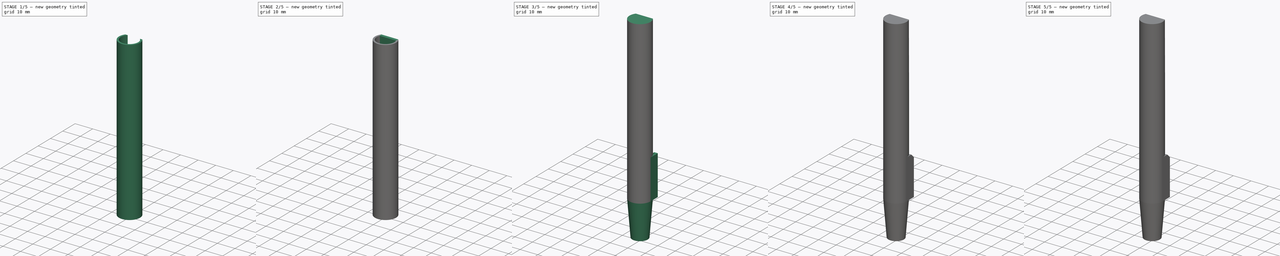
[diagram: build sequence overview — one tinted view per stage of 5, left to right]
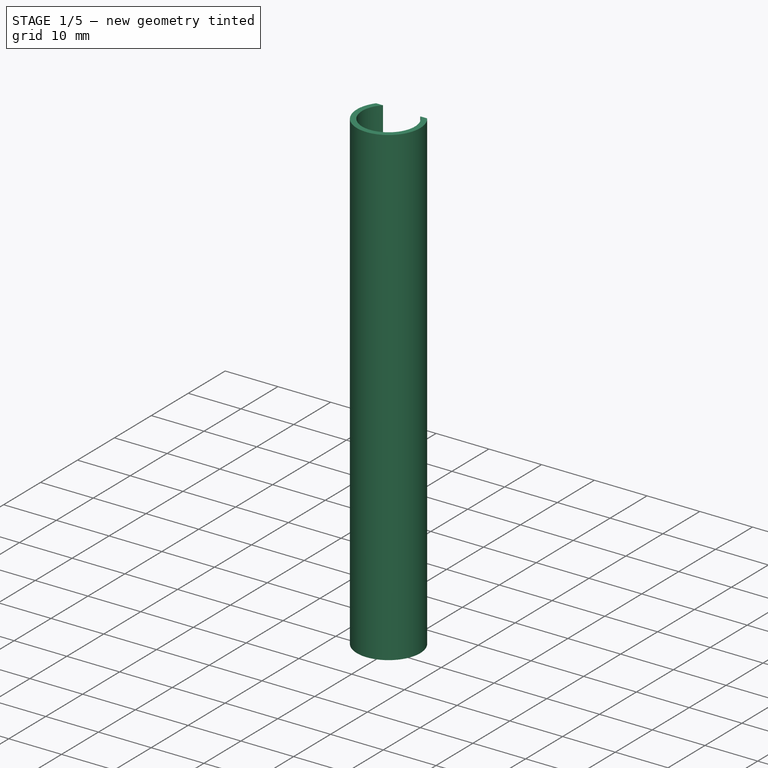
[diagram: stage 1 of 5 — iso view after this stage's code; geometry added in this stage tinted green]
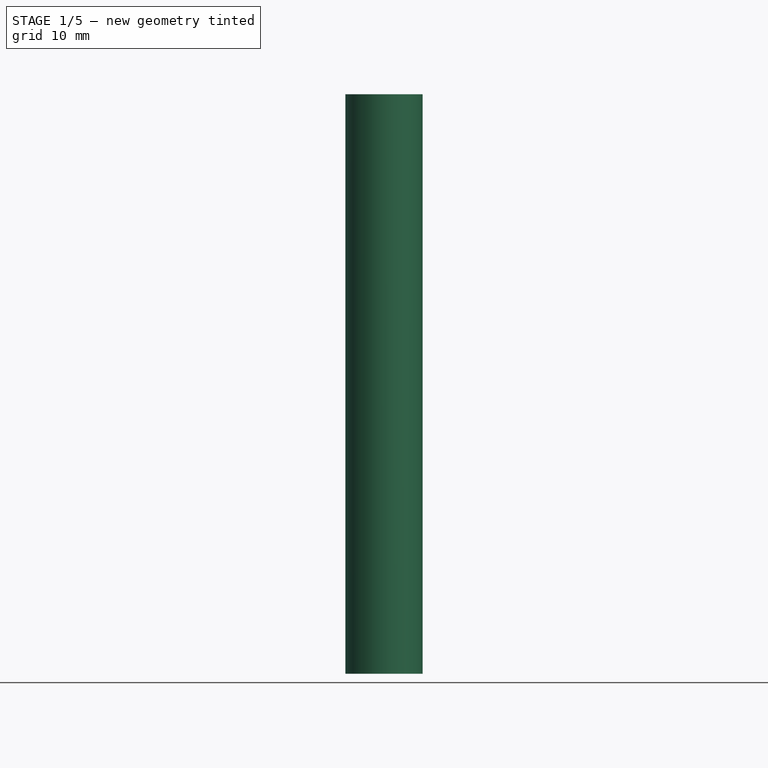
[diagram: stage 1 of 5 — front view after this stage's code; geometry added in this stage tinted green]
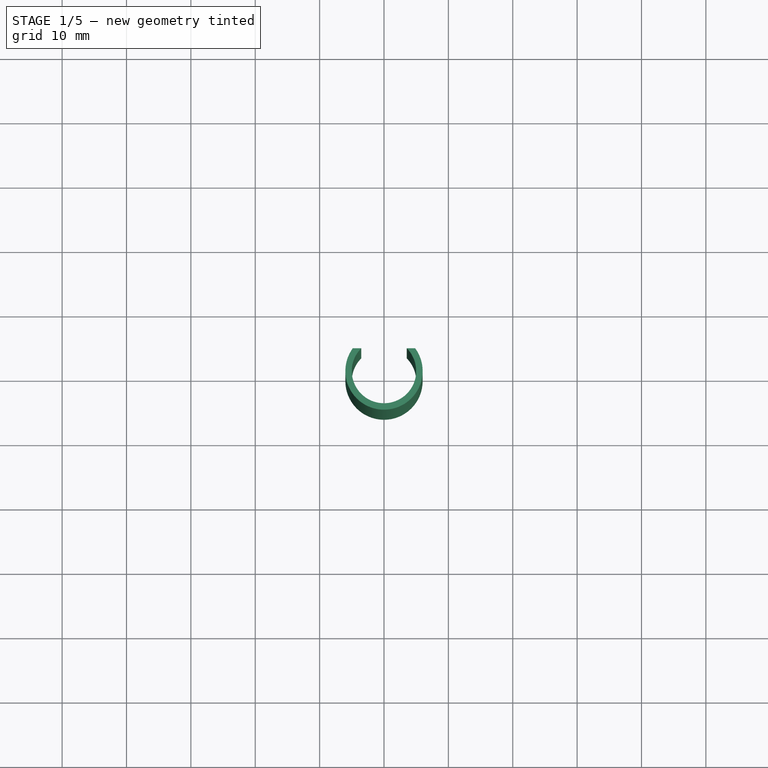
[diagram: stage 1 of 5 — top view after this stage's code; geometry added in this stage tinted green]
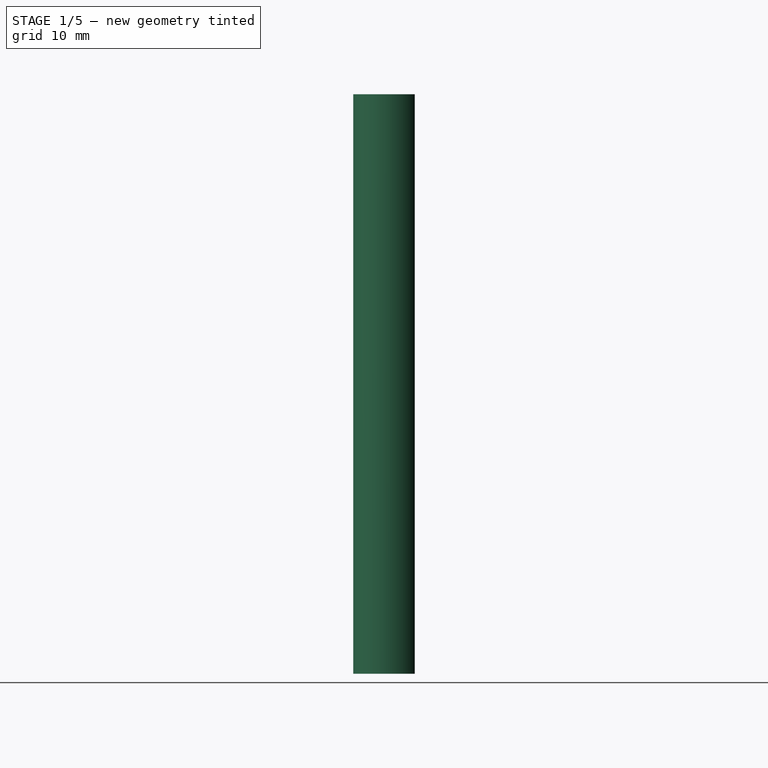
[diagram: stage 1 of 5 — right view after this stage's code; geometry added in this stage tinted green]
FCSTD DOCUMENT  (FreeCAD 1.0R39319 (Git))
Label: stroik_burd
License: All rights reserved
LicenseURL: https://en.wikipedia.org/wiki/All_rights_reserved
objects: Sketcher::SketchObject×12, PartDesign::Pocket×6, PartDesign::Pad×4, PartDesign::Body×2, Part::FeaturePython×1, PartDesign::FeatureBase×1, App::VarSet×1, PartDesign::Mirrored×1, PartDesign::Plane×1, PartDesign::AdditiveLoft×1, PartDesign::ShapeBinder×1, PartDesign::Chamfer×1
note: 69 computed .brp shape members not serialized (recipe doc carries the construction recipe); baked Part::Feature solids carry a one-line shape summary decoded from their .brp

FEATURE [Part::FeaturePython] Tube  # WARN: FeaturePython — macro-defined, semantics opaque (R4)
  AttacherType = Attacher::AttachEngine3D
  Height = 90
  InnerRadius = 5
  OuterRadius = 6
  Placement = pos=(0,0,0) rot=(0,1,0;1.5708rad)
  expr: Height = VarSet.leaf_len
  expr: InnerRadius = VarSet.d_inner
  expr: OuterRadius = VarSet.d_outer
FEATURE [PartDesign::FeatureBase] BaseFeature
  BaseFeature = -> Tube
  Suppressed = false
FEATURE [App::VarSet] VarSet
  d_inner = 5
  d_outer = 6
  d_outer_plug = 6
  leaf_angle = 0
  leaf_angle2 = 1.565
  leaf_end_thickness = 0.4
  leaf_len = 90
  leaf_start_thickness = 2.5
  plug_inner_start = 4
  plug_len = 20
  plug_outer_start = 4.4
FEATURE [Sketcher::SketchObject] Sketch
  ArcFitTolerance = 1e-06
  AttachmentSupport = -> [YZ_Plane]
  ExternalGeometry = -> [BaseFeature]
  FullyConstrained = true
  MakeInternals = false
  MapMode = 5
  Placement = pos=(0,0,0) rot=(0.57735,0.57735,0.57735;2.0944rad)
  expr: Constraints[14] = VarSet.leaf_len / 4
  expr: Constraints[8] = VarSet.leaf_len * sin(VarSet.leaf_angle2)
  sketch-geometry (6):
    g0: LineSegment StartX=6 StartY=90 StartZ=0 EndX=3.54201 EndY=90 EndZ=0
    g1: LineSegment StartX=3.54201 StartY=0 StartZ=0 EndX=6 EndY=0 EndZ=0
    g2: LineSegment StartX=6 StartY=0 StartZ=0 EndX=6 EndY=22.5 EndZ=0
    g3: LineSegment StartX=6 StartY=22.5 StartZ=0 EndX=6 EndY=90 EndZ=0
    g4: LineSegment StartX=3.54201 StartY=90 StartZ=0 EndX=3.54201 EndY=22.5 EndZ=0
    g5: LineSegment StartX=3.54201 StartY=22.5 StartZ=0 EndX=3.54201 EndY=0 EndZ=0
  constraints (17):
    c: Coincident(g0,g4)
    c: Coincident(g5,g1)
    c: Coincident(g1,g2)
    c: Coincident(g3,g0)
    c: Horizontal(g0)
    c: Horizontal(g1)
    c: Coincident(g0,g-3)
    c: PointOnObject(g5,g-4)
    c: DistanceX(g5,g1) = 2.45799
    c: Coincident(g2,g3)
    c: Vertical(g2)
    c: Vertical(g3)
    c: Coincident(g4,g5)
    c: Vertical(g5)
    c: DistanceY(g2,g2) = 22.5
    c: Horizontal(g2,g4)
    c: Vertical(g4)
FEATURE [Sketcher::SketchObject] Sketch001
  ArcFitTolerance = 1e-06
  AttachmentSupport = -> [YZ_Plane]
  ExternalGeometry = -> [Sketch]
  FullyConstrained = true
  MakeInternals = false
  MapMode = 5
  Placement = pos=(0,0,0) rot=(0.57735,0.57735,0.57735;2.0944rad)
  expr: Constraints[12] = 0.8
  expr: Constraints[13] = VarSet.leaf_len * sin(VarSet.leaf_angle2) / 2 + 0.4 mm
  sketch-geometry (6):
    g0: LineSegment StartX=3.54201 StartY=0 StartZ=0 EndX=2.74201 EndY=0 EndZ=0
    g1: LineSegment StartX=2.74201 StartY=0 StartZ=0 EndX=2.74201 EndY=22.5 EndZ=0
    g2: LineSegment StartX=2.74201 StartY=22.5 StartZ=0 EndX=1.91301 EndY=90 EndZ=0
    g3: LineSegment StartX=1.91301 StartY=90 StartZ=0 EndX=3.54201 EndY=90 EndZ=0
    g4: LineSegment StartX=3.54201 StartY=90 StartZ=0 EndX=3.54201 EndY=22.5 EndZ=0
    g5: LineSegment StartX=3.54201 StartY=22.5 StartZ=0 EndX=3.54201 EndY=0 EndZ=0
  constraints (15):
    c: Coincident(g-4,g0)
    c: PointOnObject(g0,g-1)
    c: Coincident(g0,g1)
    c: Vertical(g1)
    c: Coincident(g1,g2)
    c: Coincident(g2,g3)
    c: Coincident(g3,g-3)
    c: Horizontal(g3)
    c: Coincident(g3,g4)
    c: Coincident(g4,g-4)
    c: Coincident(g4,g5)
    c: Coincident(g5,g0)
    c: DistanceX(g1,g4) = 0.8
    c: DistanceX(g2,g3) = 1.629
    c: Horizontal(g1,g4)
FEATURE [PartDesign::Pocket] Pocket
  BaseFeature = -> BaseFeature
  Direction = (-1,0,0)
  Length = 5
  Length2 = 5
  Midplane = true
  Profile = -> Sketch
  ReferenceAxis = -> Sketch [N_Axis]
  Refine = true
  Suppressed = false
  Type = 1
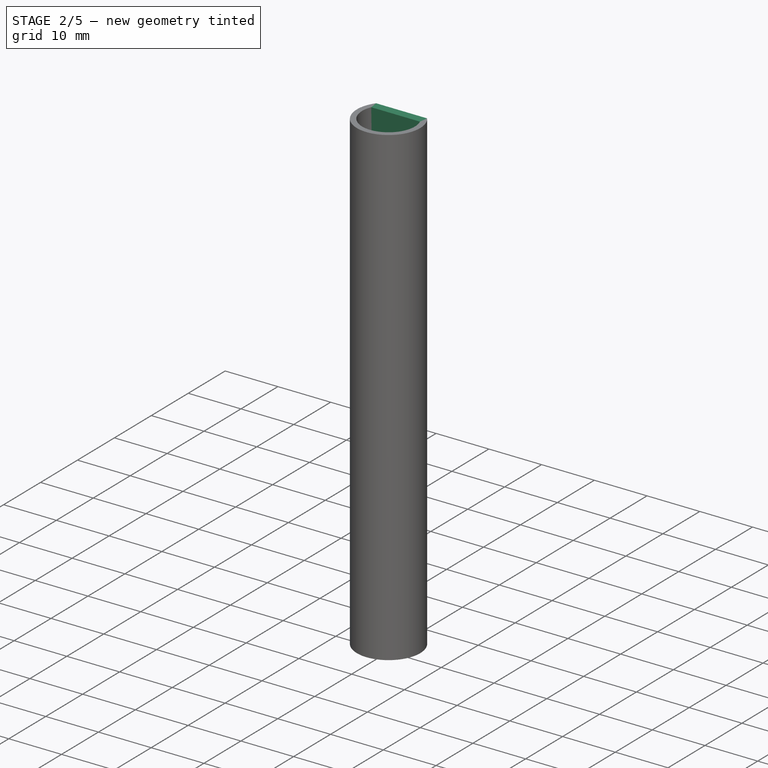
[diagram: stage 2 of 5 — iso view after this stage's code; geometry added in this stage tinted green]
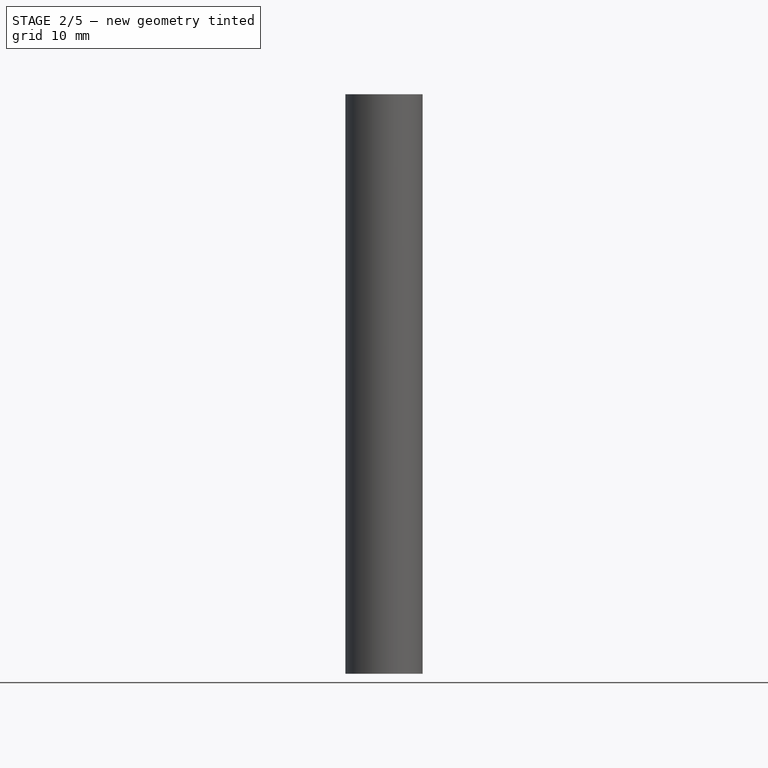
[diagram: stage 2 of 5 — front view after this stage's code; geometry added in this stage tinted green]
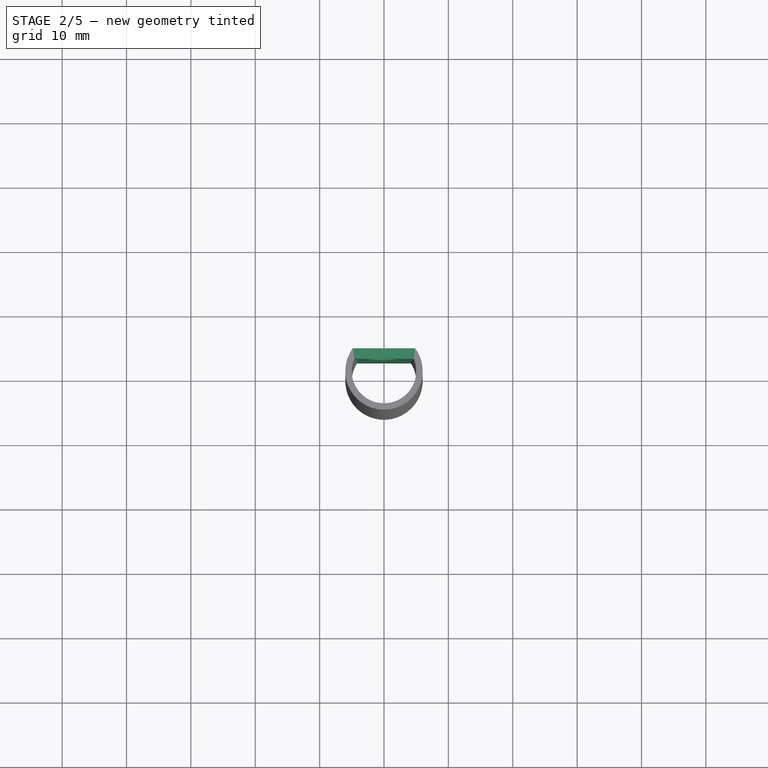
[diagram: stage 2 of 5 — top view after this stage's code; geometry added in this stage tinted green]
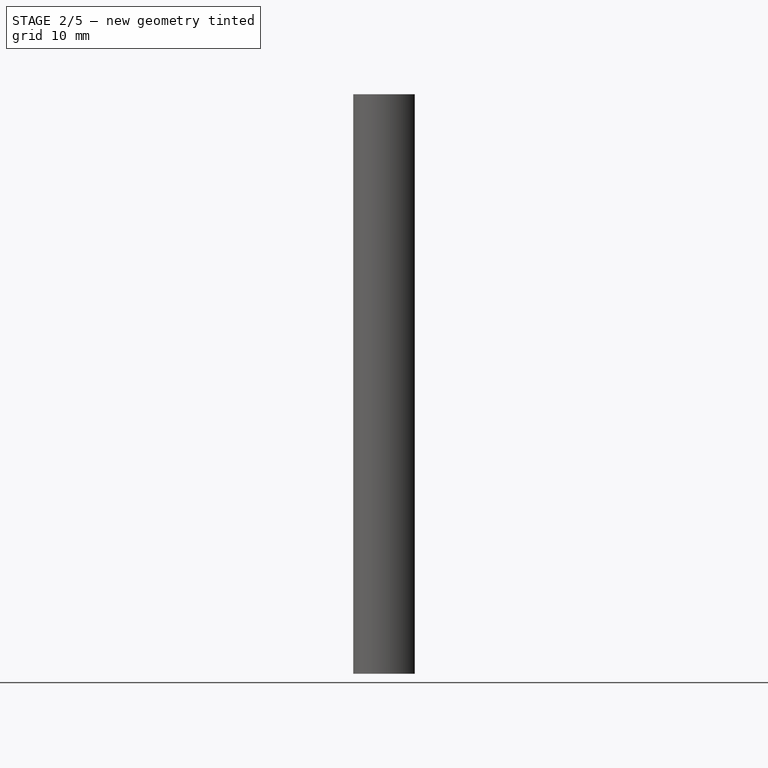
[diagram: stage 2 of 5 — right view after this stage's code; geometry added in this stage tinted green]
FEATURE [PartDesign::Pad] Pad
  AlongSketchNormal = false
  BaseFeature = -> Pocket
  Direction = (1,0,0)
  Length = 13
  Length2 = 10
  Midplane = true
  Profile = -> Sketch001
  ReferenceAxis = -> Sketch001 [N_Axis]
  Refine = true
  Suppressed = false
  Type = 1
  UpToShape = -> [Pocket]
FEATURE [PartDesign::Mirrored] Mirrored
  BaseFeature = -> Pad
  MirrorPlane = -> YZ_Plane
  Originals = -> [Pad]
  Refine = true
  Suppressed = false
  TransformMode = 0
FEATURE [Sketcher::SketchObject] Sketch002
  ArcFitTolerance = 1e-06
  AttachmentSupport = -> [Mirrored]
  ExternalGeometry = -> [Mirrored]
  FullyConstrained = true
  MakeInternals = false
  MapMode = 5
  Placement = pos=(0,3.54201,0) rot=(0,0.707107,0.707107;3.14159rad)
  expr: Constraints[10] = VarSet.leaf_len / 3
  expr: Constraints[6] = VarSet.d_inner / 3
  expr: Constraints[9] = VarSet.leaf_len / 10
  sketch-geometry (4):
    g0: LineSegment StartX=2.34433 StartY=51 StartZ=0 EndX=2.34433 EndY=81 EndZ=0
    g1: LineSegment StartX=2.34433 StartY=81 StartZ=0 EndX=-2.34433 EndY=81 EndZ=0
    g2: LineSegment StartX=-2.34433 StartY=81 StartZ=0 EndX=-2.34433 EndY=51 EndZ=0
    g3: ArcOfCircle CenterX=0 CenterY=51 CenterZ=0 NormalX=0 NormalY=0 NormalZ=1 AngleXU=0 Radius=2.34433 StartAngle=3.14159 EndAngle=6.28319
  constraints (12):
    c: Coincident(g0,g1)
    c: Coincident(g1,g2)
    c: Coincident(g3,g2)
    c: Coincident(g3,g0)
    c: PointOnObject(g3,g-2)
    c: Horizontal(g0,g2)
    c: DistanceX(g0,g-4) = 1.66667
    c: Horizontal(g2,g3)
    c: Symmetric(g0,g1,g-2)
    c: DistanceY(g1,g-7) = 9
    c: DistanceY(g3,g1) = 30
    c: Vertical(g1,g2)
FEATURE [PartDesign::Pocket] Pocket001  label="dziurka"
  BaseFeature = -> Mirrored
  Direction = (0,-1,2e-16)
  Length = 2.5
  Length2 = 5
  Profile = -> Sketch002
  ReferenceAxis = -> Sketch002 [N_Axis]
  Refine = true
  Suppressed = false
  Type = 0
  expr: Length = VarSet.d_inner / 2
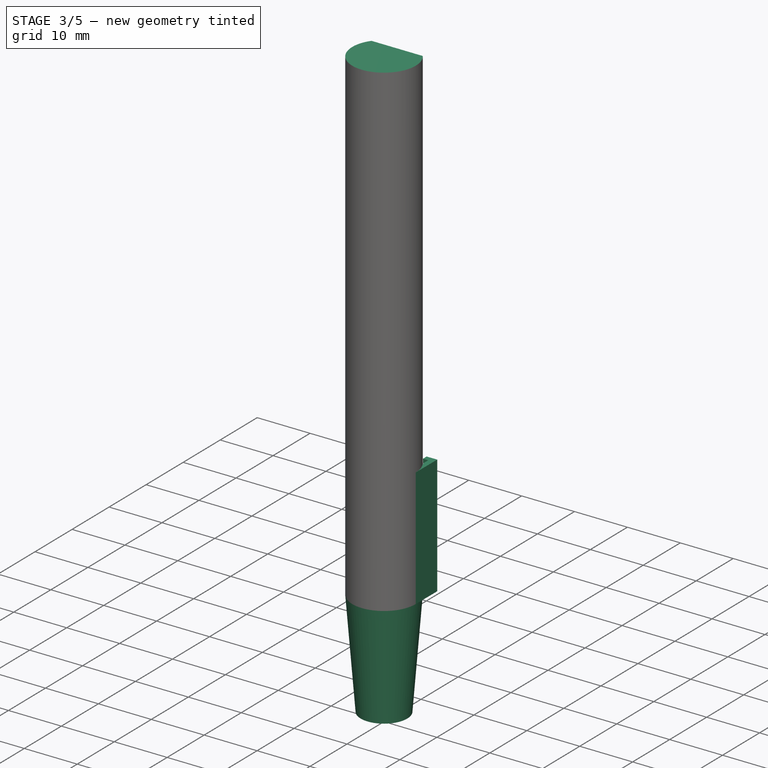
[diagram: stage 3 of 5 — iso view after this stage's code; geometry added in this stage tinted green]
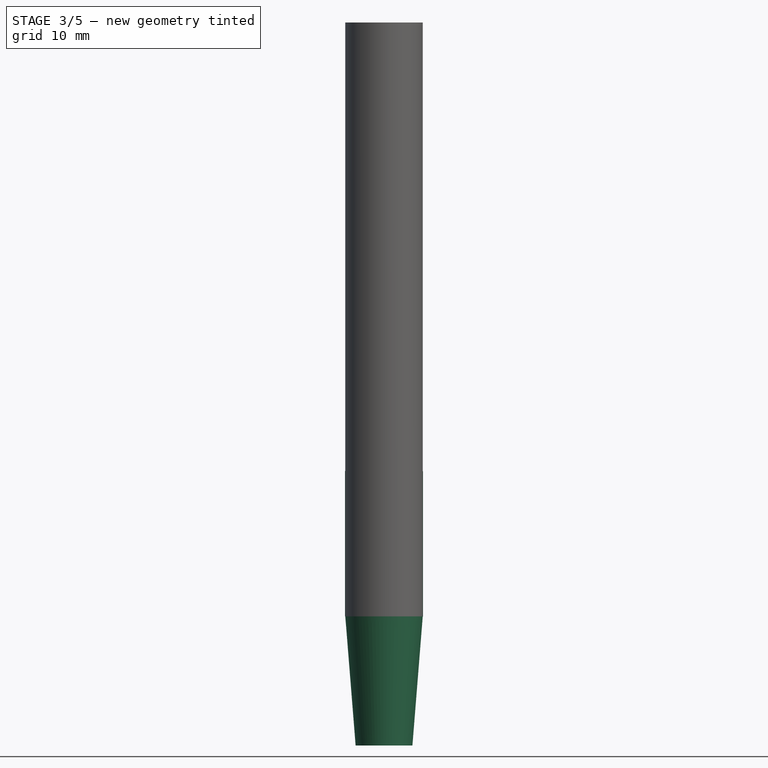
[diagram: stage 3 of 5 — front view after this stage's code; geometry added in this stage tinted green]
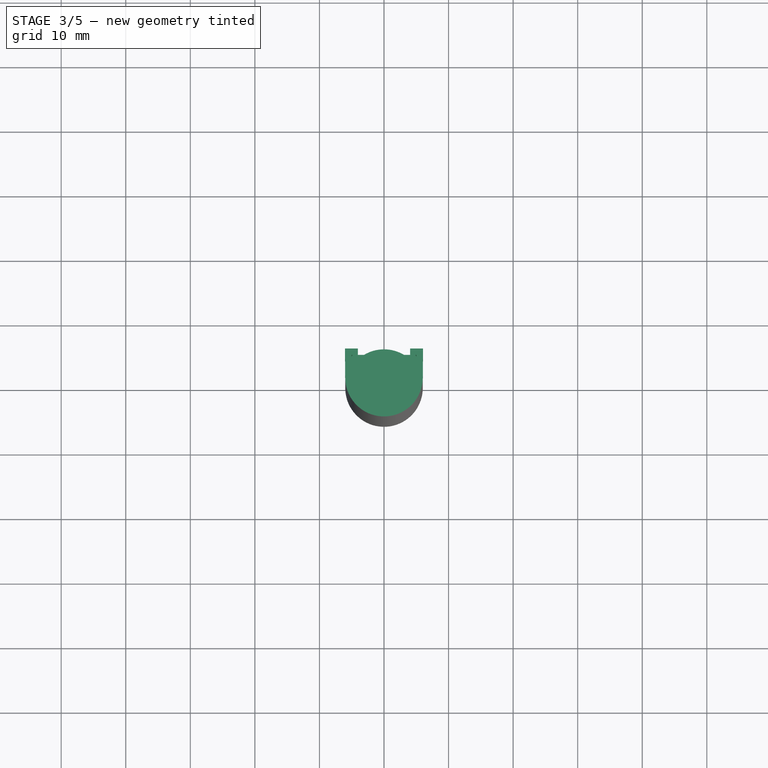
[diagram: stage 3 of 5 — top view after this stage's code; geometry added in this stage tinted green]
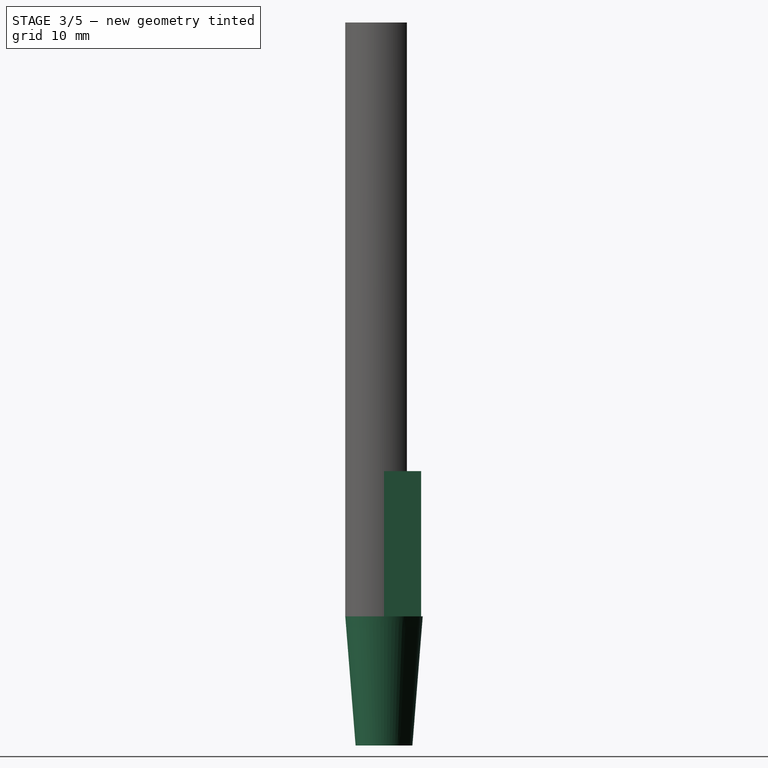
[diagram: stage 3 of 5 — right view after this stage's code; geometry added in this stage tinted green]
FEATURE [Sketcher::SketchObject] Sketch003
  ArcFitTolerance = 1e-06
  AttachmentSupport = -> [Pocket001]
  ExternalGeometry = -> [Pocket001]
  FullyConstrained = true
  MakeInternals = false
  MapMode = 5
  Placement = pos=(0,0,90) rot=(0,0,1;0rad)
  sketch-geometry (2):
    g0: ArcOfCircle CenterX=0 CenterY=0 CenterZ=0 NormalX=0 NormalY=0 NormalZ=1 AngleXU=0 Radius=6 StartAngle=2.51012 EndAngle=6.91466
    g1: LineSegment StartX=-4.84295 StartY=3.54201 StartZ=0 EndX=4.84295 EndY=3.54201 EndZ=0
  constraints (5):
    c: Coincident(g0,g-1)
    c: Coincident(g0,g-4)
    c: Coincident(g1,g0)
    c: Coincident(g1,g0)
    c: Horizontal(g1)
FEATURE [PartDesign::Pad] Pad001
  BaseFeature = -> Pocket001
  Direction = (0,0,1)
  Length = 2
  Length2 = 10
  Profile = -> Sketch003
  ReferenceAxis = -> Sketch003 [N_Axis]
  Refine = true
  Suppressed = false
  Type = 0
FEATURE [Sketcher::SketchObject] Sketch004
  ArcFitTolerance = 1e-06
  AttachmentSupport = -> [Pad001]
  ExternalGeometry = -> [Pad001]
  FullyConstrained = true
  MakeInternals = false
  MapMode = 5
  Placement = pos=(0,0,0) rot=(1,0,0;3.14159rad)
  expr: Constraints[4] = VarSet.d_outer_plug
  expr: Constraints[7] = VarSet.d_inner
  sketch-geometry (3):
    g0: ArcOfCircle CenterX=0 CenterY=0 CenterZ=0 NormalX=0 NormalY=0 NormalZ=1 AngleXU=0 Radius=5 StartAngle=5.70273 EndAngle=10.0052
    g1: LineSegment StartX=-4.18107 StartY=-2.74201 StartZ=0 EndX=4.18107 EndY=-2.74201 EndZ=0
    g2: Circle CenterX=0 CenterY=0 CenterZ=0 NormalX=0 NormalY=0 NormalZ=1 AngleXU=0 Radius=6
  constraints (8):
    c: Coincident(g1,g0)
    c: Horizontal(g1)
    c: Coincident(g2,g0)
    c: Coincident(g-1,g0)
    c: Radius(g2) = 6
    c: Horizontal(g0,g-6)
    c: Coincident(g1,g0)
    c: Radius(g0) = 5
FEATURE [PartDesign::Plane] DatumPlane
  AttachmentOffset = pos=(0,0,20) rot=(0,0,1;0rad)
  AttachmentSupport = -> [Pad001]
  Length = 60
  MapMode = 5
  Placement = pos=(0,0,-20) rot=(1,0,0;3.14159rad)
  ResizeMode = 0
  Width = 60
  expr: .AttachmentOffset.Base.z = VarSet.plug_len
FEATURE [Sketcher::SketchObject] Sketch005
  ArcFitTolerance = 1e-06
  AttachmentSupport = -> [DatumPlane]
  ExternalGeometry = -> [Sketch004,Pad001]
  FullyConstrained = true
  MakeInternals = false
  MapMode = 5
  Placement = pos=(0,0,-20) rot=(1,0,0;3.14159rad)
  expr: Constraints[2] = VarSet.plug_inner_start
  expr: Constraints[3] = VarSet.plug_outer_start
  sketch-geometry (2):
    g0: Circle CenterX=0 CenterY=0 CenterZ=0 NormalX=0 NormalY=0 NormalZ=1 AngleXU=0 Radius=4
    g1: Circle CenterX=0 CenterY=0 CenterZ=0 NormalX=0 NormalY=0 NormalZ=1 AngleXU=0 Radius=4.4
  constraints (4):
    c: Coincident(g0,g-1)
    c: Coincident(g1,g0)
    c: Radius(g0) = 4
    c: Radius(g1) = 4.4
FEATURE [PartDesign::AdditiveLoft] AdditiveLoft
  BaseFeature = -> Pad001
  Closed = false
  Profile = -> Sketch005
  Refine = true
  Ruled = false
  Sections = -> [Sketch004]
  Suppressed = false
FEATURE [Sketcher::SketchObject] Sketch006
  ArcFitTolerance = 1e-06
  AttachmentSupport = -> [Pad001]
  ExternalGeometry = -> [Pad001]
  FullyConstrained = true
  MakeInternals = false
  MapMode = 5
  Placement = pos=(0,0,0) rot=(1,0,0;3.14159rad)
  sketch-geometry (14):
    g0: LineSegment StartX=4.84295 StartY=-3.54201 StartZ=0 EndX=6 EndY=0 EndZ=0
    g1: LineSegment StartX=6 StartY=0 StartZ=0 EndX=6.04295 EndY=-5.74201 EndZ=0
    g2: LineSegment StartX=6.04295 StartY=-5.74201 StartZ=0 EndX=4.04295 EndY=-5.74201 EndZ=0
    g3: LineSegment StartX=4.04295 StartY=-5.74201 StartZ=0 EndX=4.04295 EndY=-4.74201 EndZ=0
    g4: LineSegment StartX=4.04295 StartY=-4.74201 StartZ=0 EndX=5.04295 EndY=-4.74201 EndZ=0
    g5: LineSegment StartX=-6.04295 StartY=-5.74201 StartZ=0 EndX=-4.04295 EndY=-5.74201 EndZ=0
    g6: LineSegment StartX=-6 StartY=0 StartZ=0 EndX=-6.04295 EndY=-5.74201 EndZ=0
    g7: LineSegment StartX=-4.84295 StartY=-3.54201 StartZ=0 EndX=-6 EndY=0 EndZ=0
    g8: LineSegment StartX=-4.04295 StartY=-4.74201 StartZ=0 EndX=-5.04295 EndY=-4.74201 EndZ=0
    g9: LineSegment StartX=-4.04295 StartY=-5.74201 StartZ=0 EndX=-4.04295 EndY=-4.74201 EndZ=0
    g10: LineSegment StartX=5.04295 StartY=-4.74201 StartZ=0 EndX=5.04295 EndY=-3.54201 EndZ=0
    g11: LineSegment StartX=5.04295 StartY=-3.54201 StartZ=0 EndX=4.84295 EndY=-3.54201 EndZ=0
    g12: LineSegment StartX=-5.04295 StartY=-4.74201 StartZ=0 EndX=-5.04295 EndY=-3.54201 EndZ=0
    g13: LineSegment StartX=-5.04295 StartY=-3.54201 StartZ=0 EndX=-4.84295 EndY=-3.54201 EndZ=0
  constraints (34):
    c: Coincident(g-5,g0)
    c: Coincident(g0,g1)
    c: Coincident(g1,g2)
    c: Horizontal(g2)
    c: Coincident(g2,g3)
    c: Vertical(g3)
    c: Coincident(g3,g4)
    c: Horizontal(g4)
    c: Coincident(g4,g10)
    c: Coincident(g11,g0)
    c: Coincident(g7,g6)
    c: Coincident(g6,g5)
    c: Coincident(g5,g9)
    c: Vertical(g9)
    c: Coincident(g9,g8)
    c: Horizontal(g8)
    c: Coincident(g8,g12)
    c: Coincident(g13,g7)
    c: Symmetric(g2,g5,g-2)
    c: DistanceX(g4,g4) = 1
    c: Symmetric(g4,g12,g-2)
    c: Symmetric(g0,g6,g-2)
    c: DistanceY(g3,g3) = 1
    c: Symmetric(g7,g0,g-2)
    c: DistanceY(g10,g11) = 1.2
    c: DistanceX(g2,g2) = 2
    c: Coincident(g0,g-5)
    c: Symmetric(g5,g1,g-2)
    c: Coincident(g10,g11)
    c: Vertical(g10)
    c: Horizontal(g10,g0)
    c: DistanceX(g11,g11) = 0.2
    c: Coincident(g12,g13)
    c: Symmetric(g12,g10,g-2)
FEATURE [PartDesign::Pad] Pad002  label="uchwyt na listek"
  BaseFeature = -> AdditiveLoft
  Direction = (0,0,-1)
  Length = 22.5
  Length2 = 10
  Profile = -> Sketch006
  ReferenceAxis = -> Sketch006 [N_Axis]
  Refine = true
  Reversed = true
  Suppressed = false
  Type = 0
  expr: Length = VarSet.leaf_len / 4
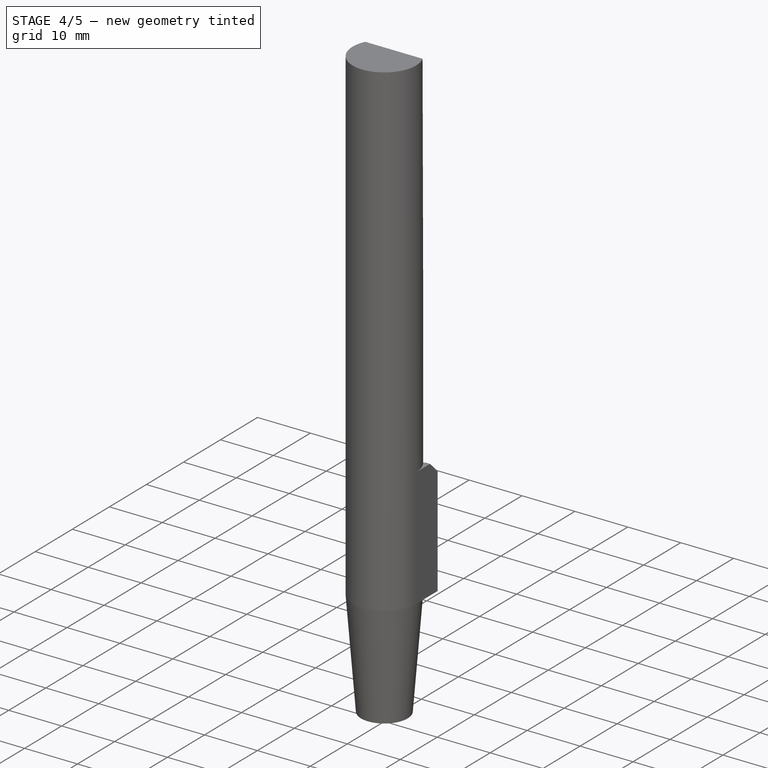
[diagram: stage 4 of 5 — iso view after this stage's code; geometry added in this stage tinted green]
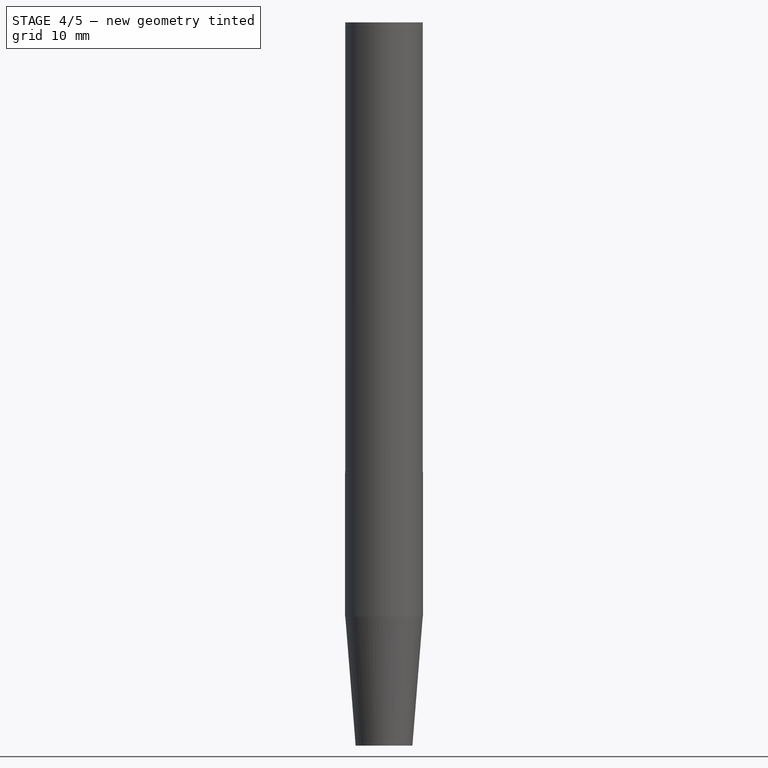
[diagram: stage 4 of 5 — front view after this stage's code; geometry added in this stage tinted green]
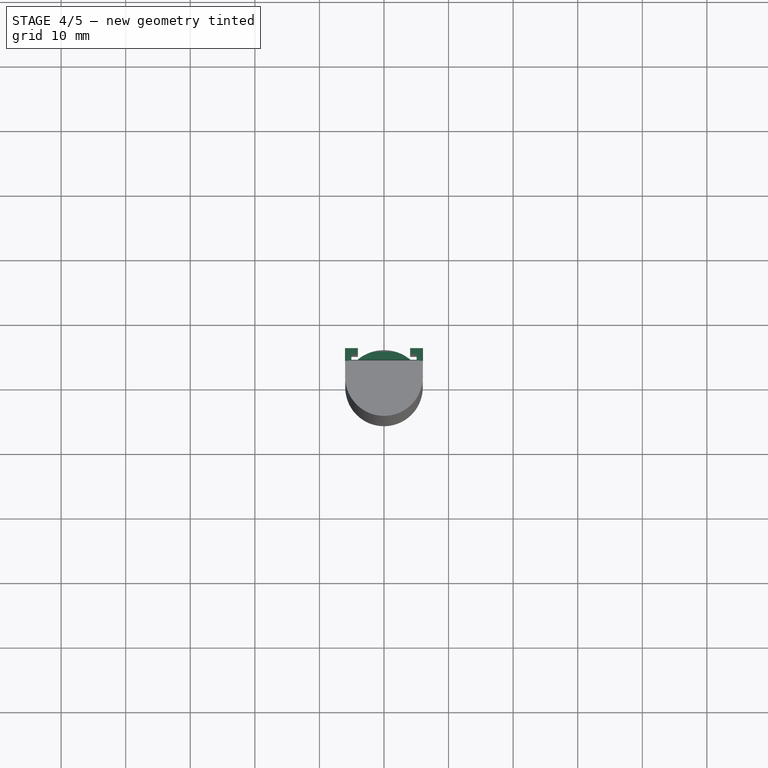
[diagram: stage 4 of 5 — top view after this stage's code; geometry added in this stage tinted green]
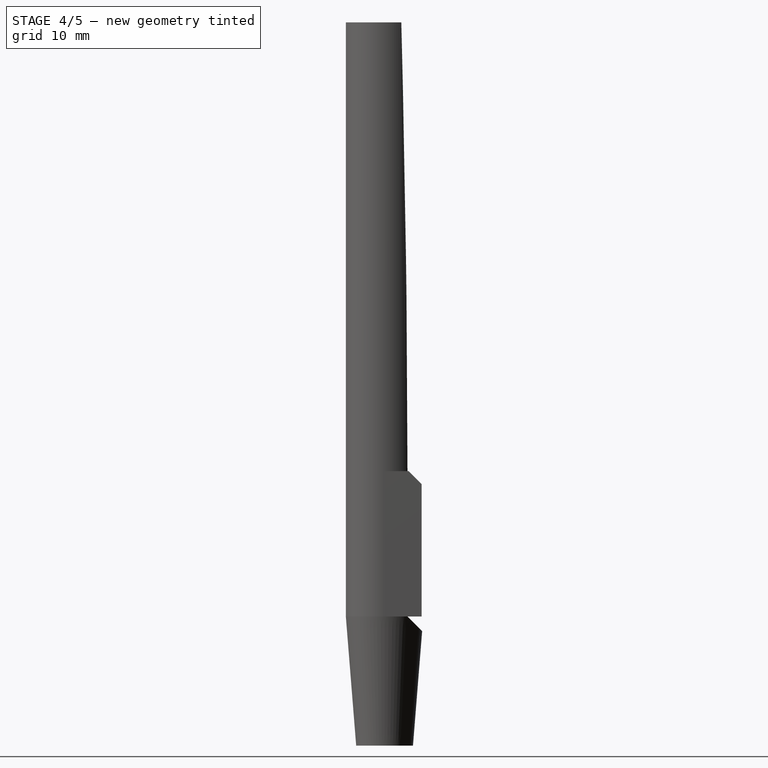
[diagram: stage 4 of 5 — right view after this stage's code; geometry added in this stage tinted green]
FEATURE [Sketcher::SketchObject] Sketch009
  ArcFitTolerance = 1e-06
  AttachmentSupport = -> [YZ_Plane]
  ExternalGeometry = -> [Pad001]
  FullyConstrained = true
  MakeInternals = false
  MapMode = 5
  Placement = pos=(0,0,0) rot=(0.57735,0.57735,0.57735;2.0944rad)
  expr: Constraints[12] = VarSet.leaf_len * 2
  expr: Constraints[15] = 90 deg - VarSet.leaf_angle2
  expr: Constraints[1] = VarSet.leaf_len / 4
  sketch-geometry (11):
    g0: GeomPoint X=3.54201 Y=22.5 Z=0
    g1: Circle [constr] CenterX=3.54201 CenterY=22.5 CenterZ=0 NormalX=0 NormalY=0 NormalZ=1 AngleXU=0 Radius=1
    g2: Circle [constr] CenterX=3.54201 CenterY=92 CenterZ=0 NormalX=0 NormalY=0 NormalZ=1 AngleXU=0 Radius=1
    g3: Circle [constr] CenterX=-0.761079 CenterY=180 CenterZ=0 NormalX=0 NormalY=0 NormalZ=1 AngleXU=0 Radius=1
    g4: BSplineCurve PolesCount=3 KnotsCount=2 Degree=2 IsPeriodic=0
    g5: GeomPoint [constr] X=3.54201 Y=22.5 Z=0
    g6: GeomPoint [constr] X=-0.761079 Y=180 Z=0
    g7: LineSegment [constr] StartX=-0.761079 StartY=180 StartZ=0 EndX=3.54201 EndY=22.5 EndZ=0
    g8: LineSegment StartX=-0.761079 StartY=180 StartZ=0 EndX=103.542 EndY=180 EndZ=0
    g9: LineSegment StartX=103.542 StartY=180 StartZ=0 EndX=103.542 EndY=22.5 EndZ=0
    g10: LineSegment StartX=103.542 StartY=22.5 StartZ=0 EndX=3.54201 EndY=22.5 EndZ=0
  constraints (24):
    c: PointOnObject(g0,g-3)
    c: DistanceY(g-3,g0) = 22.5
    c: Weight(g1) = 1
    c: Equal(g1,g2)
    c: Equal(g1,g3)
    c: InternalAlignment(g1,g4)
    c: InternalAlignment(g2,g4)
    c: InternalAlignment(g3,g4)
    c: InternalAlignment(g5,g4)
    c: InternalAlignment(g6,g4)
    c: Coincident(g1,g0)
    c: Coincident(g2,g-3)
    c: DistanceY(g-1,g4) = 180
    c: Coincident(g7,g4)
    c: Coincident(g7,g4)
    c: Angle(g7,g-1) = 1.54348
    c: Coincident(g8,g4)
    c: Horizontal(g8)
    c: Coincident(g8,g9)
    c: Vertical(g9)
    c: Coincident(g9,g10)
    c: Coincident(g10,g0)
    c: Horizontal(g10)
    c: DistanceX(g10,g10) = 100
FEATURE [PartDesign::Pocket] Pocket003
  BaseFeature = -> Pad002
  Direction = (-1,0,0)
  Length = 100
  Length2 = 5
  Midplane = true
  Profile = -> Sketch009
  ReferenceAxis = -> Sketch009 [N_Axis]
  Refine = true
  Suppressed = false
  Type = 0
FEATURE [PartDesign::Body] Body001  label="listek burdonowy"
  AllowCompound = false
  Group = -> [ShapeBinder,Sketch010,Pad003,Sketch011,Pocket004,Sketch012,Pocket005]
  Origin = -> Origin001
  Placement = pos=(0,25,0) rot=(0,0,1;0rad)
  Tip = -> Pocket005
FEATURE [PartDesign::Chamfer] Chamfer
  Angle = 45
  Base = -> Pocket003 [Edge81,Edge69]
  BaseFeature = -> Pocket003
  ChamferType = 0
  FlipDirection = false
  Refine = true
  Size = 2
  Size2 = 1
  SupportTransform = false
  Suppressed = false
  UseAllEdges = false
FEATURE [Sketcher::SketchObject] Sketch013
  ArcFitTolerance = 1e-06
  AttachmentSupport = -> [YZ_Plane]
  ExternalGeometry = -> [AdditiveLoft]
  FullyConstrained = true
  MakeInternals = false
  MapMode = 5
  Placement = pos=(0,0,0) rot=(0.57735,0.57735,0.57735;2.0944rad)
  sketch-geometry (3):
    g0: LineSegment StartX=3.54201 StartY=0 StartZ=0 EndX=17.6841 EndY=-14.1421 EndZ=0
    g1: LineSegment StartX=17.6841 StartY=-14.1421 StartZ=0 EndX=17.6841 EndY=0 EndZ=0
    g2: LineSegment StartX=17.6841 StartY=0 StartZ=0 EndX=3.54201 EndY=0 EndZ=0
  constraints (8):
    c: Coincident(g-3,g0)
    c: Coincident(g0,g1)
    c: Vertical(g1)
    c: Coincident(g1,g2)
    c: Coincident(g2,g0)
    c: Angle(g-2,g0) = 0.785398
    c: Distance(g0,g0) = 20
    c: Angle(g0,g2) = 0.785398
FEATURE [PartDesign::Pocket] Pocket006
  BaseFeature = -> Chamfer
  Direction = (-1,0,0)
  Length = 5
  Length2 = 5
  Midplane = true
  Profile = -> Sketch013
  ReferenceAxis = -> Sketch013 [N_Axis]
  Refine = true
  Suppressed = false
  Type = 1
FEATURE [PartDesign::Body] Body  label="stroik_burdonowy"
  AllowCompound = false
  BaseFeature = -> Tube
  Group = -> [BaseFeature,Sketch,Pocket,Sketch001,Pad,Mirrored,Sketch002,Pocket001,Sketch003,Pad001,Sketch004,DatumPlane,Sketch005,AdditiveLoft,Sketch006,Pad002,Sketch009,Pocket003,Chamfer,Sketch013,Pocket006]
  Origin = -> Origin
  Tip = -> Pocket006
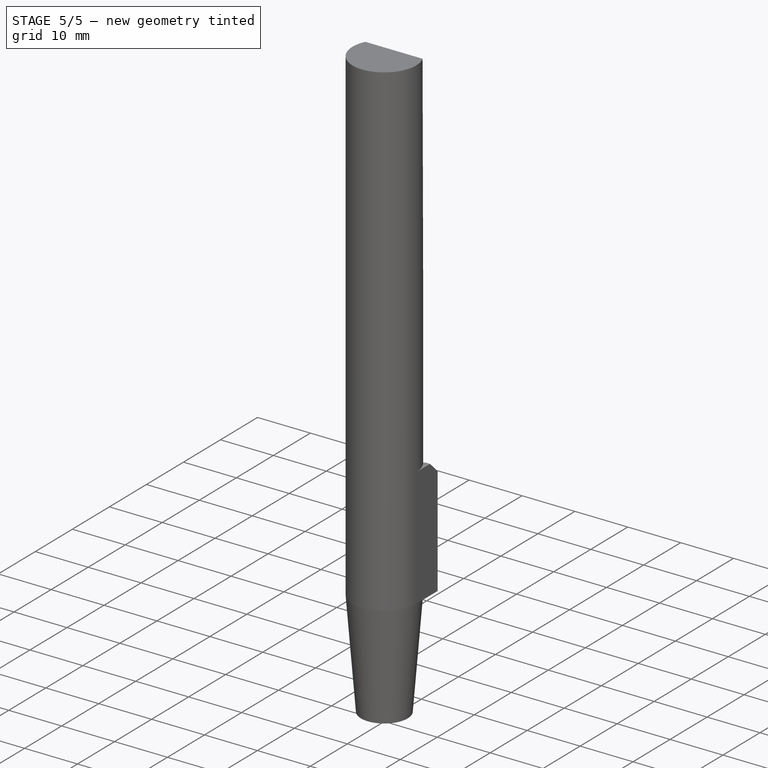
[diagram: stage 5 of 5 — iso view after this stage's code; geometry added in this stage tinted green]
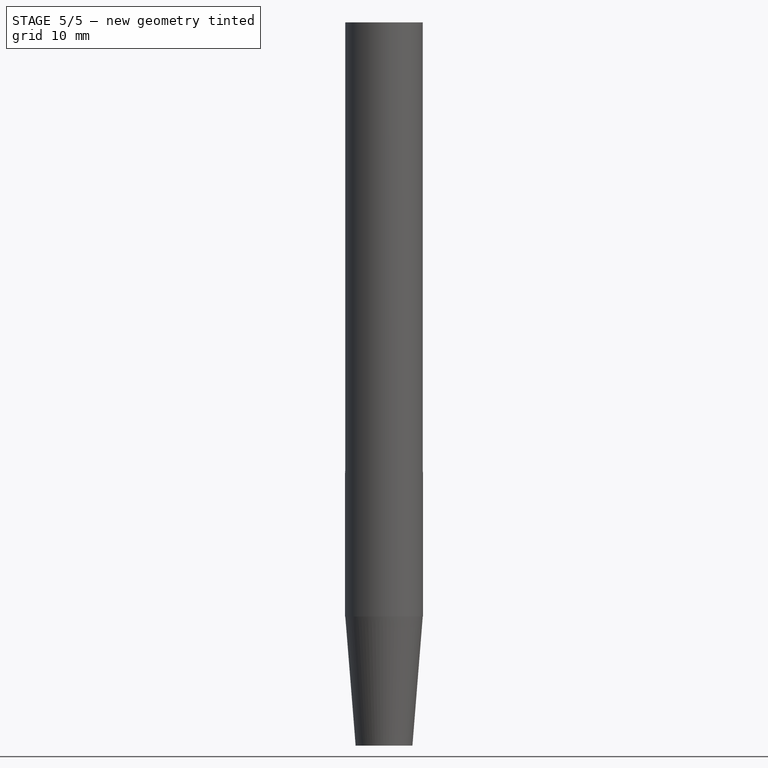
[diagram: stage 5 of 5 — front view after this stage's code; geometry added in this stage tinted green]
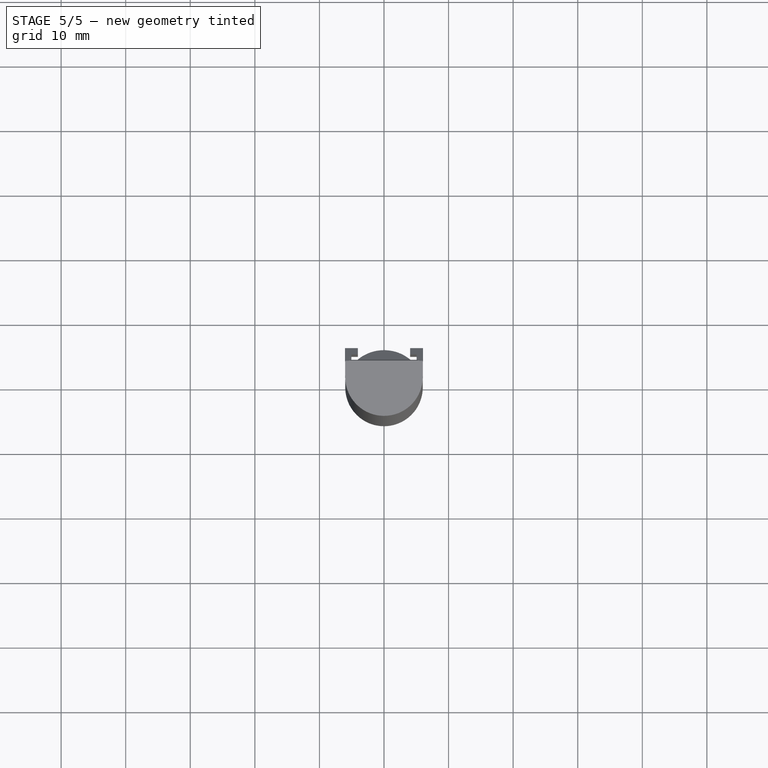
[diagram: stage 5 of 5 — top view after this stage's code; geometry added in this stage tinted green]
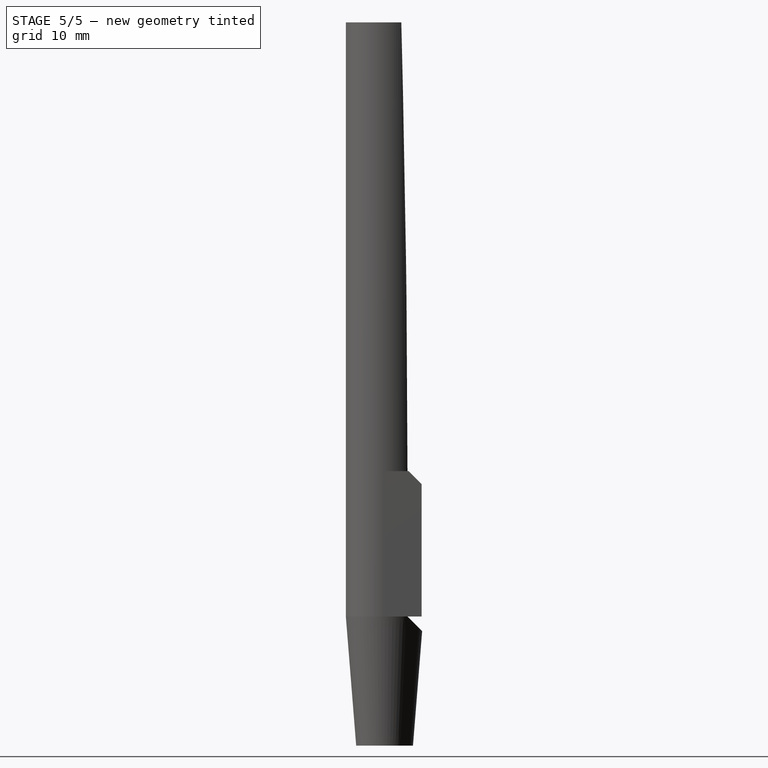
[diagram: stage 5 of 5 — right view after this stage's code; geometry added in this stage tinted green]
FEATURE [PartDesign::ShapeBinder] ShapeBinder
  Support = -> [Mirrored]
  TraceSupport = false
FEATURE [Sketcher::SketchObject] Sketch010
  ArcFitTolerance = 1e-06
  AttachmentSupport = -> [XZ_Plane001]
  ExternalGeometry = -> [ShapeBinder]
  FullyConstrained = true
  MakeInternals = false
  MapMode = 5
  Placement = pos=(0,0,0) rot=(1,0,0;1.5708rad)
  expr: Constraints[10] = VarSet.d_inner * 2
  expr: Constraints[6] = VarSet.leaf_len / 4
  expr: Constraints[9] = VarSet.leaf_len - VarSet.d_outer
  sketch-geometry (6):
    g0: LineSegment StartX=-4.84295 StartY=0 StartZ=0 EndX=4.84295 EndY=8e-16 EndZ=0
    g1: LineSegment StartX=4.84295 StartY=8e-16 StartZ=0 EndX=4.84295 EndY=22.5 EndZ=0
    g2: LineSegment StartX=-4.84295 StartY=22.5 StartZ=0 EndX=-4.84295 EndY=0 EndZ=0
    g3: LineSegment StartX=4.84295 StartY=22.5 StartZ=0 EndX=5 EndY=84 EndZ=0
    g4: LineSegment StartX=-4.84295 StartY=22.5 StartZ=0 EndX=-5 EndY=84 EndZ=0
    g5: ArcOfCircle CenterX=2e-16 CenterY=84 CenterZ=0 NormalX=0 NormalY=0 NormalZ=1 AngleXU=0 Radius=5 StartAngle=4e-16 EndAngle=3.14159
  constraints (16):
    c: Coincident(g0,g1)
    c: Coincident(g2,g0)
    c: Vertical(g1)
    c: Vertical(g2)
    c: Coincident(g0,g-3)
    c: Coincident(g0,g-3)
    c: DistanceY(g1,g1) = 22.5
    c: Coincident(g3,g1)
    c: Symmetric(g3,g4,g-2)
    c: DistanceY(g0,g3) = 84
    c: DistanceX(g4,g3) = 10
    c: Coincident(g5,g3)
    c: Coincident(g5,g4)
    c: Horizontal(g5,g3)
    c: Horizontal(g2,g1)
    c: Coincident(g4,g2)
FEATURE [PartDesign::Pad] Pad003
  Direction = (0,-1,2e-16)
  Length = 2.5
  Length2 = 10
  Placement = pos=(0,0,0) rot=(1,0,0;1.5708rad)
  Profile = -> Sketch010
  ReferenceAxis = -> Sketch010 [N_Axis]
  Refine = true
  Suppressed = false
  Type = 0
  expr: Length = VarSet.leaf_start_thickness
FEATURE [Sketcher::SketchObject] Sketch011
  ArcFitTolerance = 1e-06
  AttachmentSupport = -> [Pad003]
  ExternalGeometry = -> [Pad003]
  FullyConstrained = true
  MakeInternals = false
  MapMode = 5
  Placement = pos=(0,0,4e-16) rot=(1,0,0;3.14159rad)
  sketch-geometry (8):
    g0: LineSegment StartX=-3.84295 StartY=2.5 StartZ=0 EndX=-3.84295 EndY=1 EndZ=0
    g1: LineSegment StartX=-3.84295 StartY=1 StartZ=0 EndX=-8.84295 EndY=1 EndZ=0
    g2: LineSegment StartX=-8.84295 StartY=1 StartZ=0 EndX=-8.84295 EndY=6.00104 EndZ=0
    g3: LineSegment StartX=-8.84295 StartY=6.00104 StartZ=0 EndX=-3.84295 EndY=2.5 EndZ=0
    g4: LineSegment StartX=8.84295 StartY=6.00104 StartZ=0 EndX=3.84295 EndY=2.5 EndZ=0
    g5: LineSegment StartX=3.84295 StartY=2.5 StartZ=0 EndX=3.84295 EndY=1 EndZ=0
    g6: LineSegment StartX=3.84295 StartY=1 StartZ=0 EndX=8.84295 EndY=1 EndZ=0
    g7: LineSegment StartX=8.84295 StartY=1 StartZ=0 EndX=8.84295 EndY=6.00104 EndZ=0
  constraints (21):
    c: PointOnObject(g0,g-3)
    c: Vertical(g0)
    c: Coincident(g0,g1)
    c: Horizontal(g1)
    c: Coincident(g1,g2)
    c: Vertical(g2)
    c: Coincident(g2,g3)
    c: Coincident(g3,g0)
    c: DistanceX(g-4,g0) = 1
    c: Vertical(g5)
    c: Coincident(g5,g6)
    c: Coincident(g6,g7)
    c: Coincident(g7,g4)
    c: Coincident(g4,g5)
    c: Symmetric(g4,g0,g-2)
    c: Symmetric(g5,g0,g-2)
    c: Symmetric(g6,g1,g-2)
    c: Symmetric(g4,g2,g-2)
    c: DistanceY(g-5,g0) = 1
    c: Angle(g-3,g3) = 2.53073
    c: DistanceX(g1,g1) = 5
FEATURE [PartDesign::Pocket] Pocket004  label="uchwyt"
  BaseFeature = -> Pad003
  Direction = (0,0,1)
  Length = 22.5
  Length2 = 5
  Placement = pos=(0,0,0) rot=(1,0,0;1.5708rad)
  Profile = -> Sketch011
  ReferenceAxis = -> Sketch011 [N_Axis]
  Refine = true
  Suppressed = false
  Type = 0
  expr: Length = VarSet.leaf_len / 4
FEATURE [Sketcher::SketchObject] Sketch012
  ArcFitTolerance = 1e-06
  AttachmentSupport = -> [Pocket004]
  ExternalGeometry = -> [Pocket004]
  FullyConstrained = true
  MakeInternals = false
  MapMode = 5
  Placement = pos=(-4.78546,0,-0.0122204) rot=(0.708009,0,-0.706203;3.14159rad)
  expr: Constraints[0] = VarSet.d_inner + 0.4 mm
  expr: Constraints[5] = VarSet.leaf_end_thickness
  sketch-geometry (3):
    g0: LineSegment StartX=-89.4125 StartY=0.4 StartZ=0 EndX=-22.5123 EndY=2.5 EndZ=0
    g1: LineSegment StartX=-89.4125 StartY=0.4 StartZ=0 EndX=-89.4125 EndY=14.23 EndZ=0
    g2: LineSegment StartX=-89.4125 StartY=14.23 StartZ=0 EndX=-22.5123 EndY=2.5 EndZ=0
  constraints (8):
    c: DistanceX(g0,g-3) = 5.4
    c: Coincident(g1,g0)
    c: Vertical(g1)
    c: Coincident(g2,g1)
    c: Coincident(g2,g0)
    c: DistanceY(g-4,g0) = 0.4
    c: Coincident(g0,g-3)
    c: DistanceY(g1,g1) = 13.83
FEATURE [PartDesign::Pocket] Pocket005  label="Pochylenie"
  BaseFeature = -> Pocket004
  Direction = (0.999997,0,0.00255364)
  Length = 5
  Length2 = 5
  Placement = pos=(0,0,0) rot=(1,0,0;1.5708rad)
  Profile = -> Sketch012
  ReferenceAxis = -> Sketch012 [N_Axis]
  Refine = true
  Suppressed = false
  Type = 1
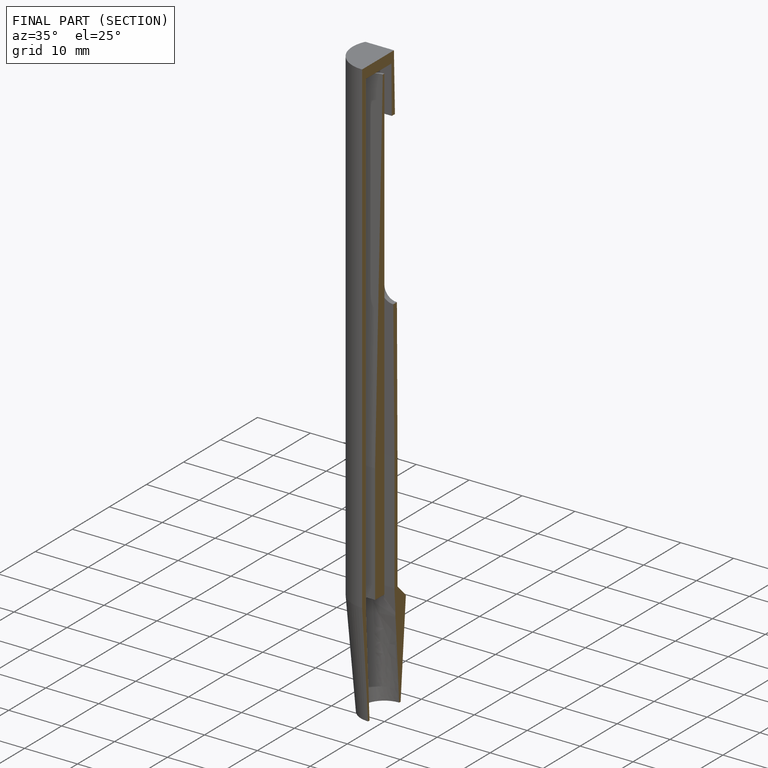
[diagram: finished part — half-section view (interior)]
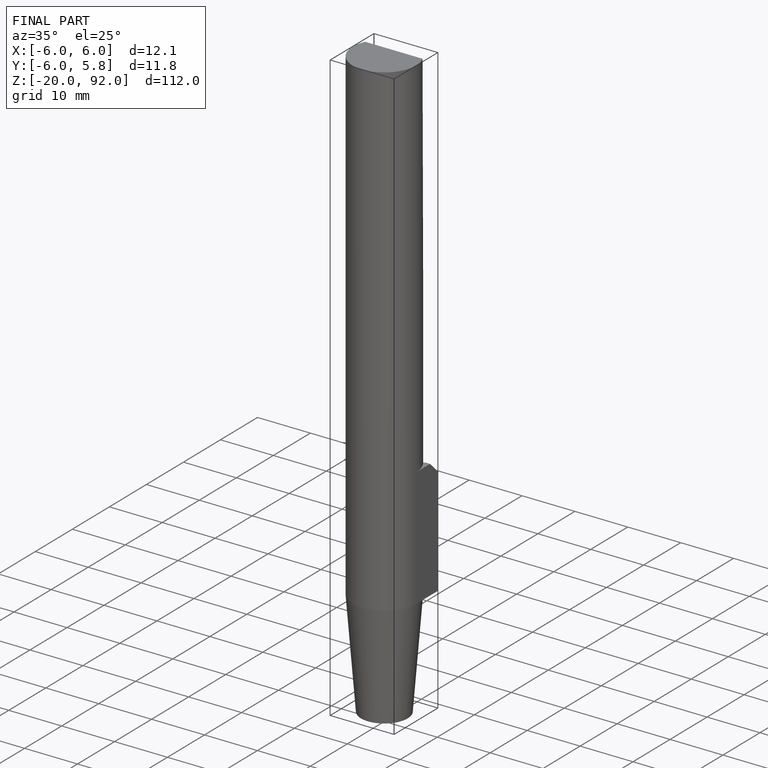
[diagram: finished part — iso view with bounding-box wireframe]
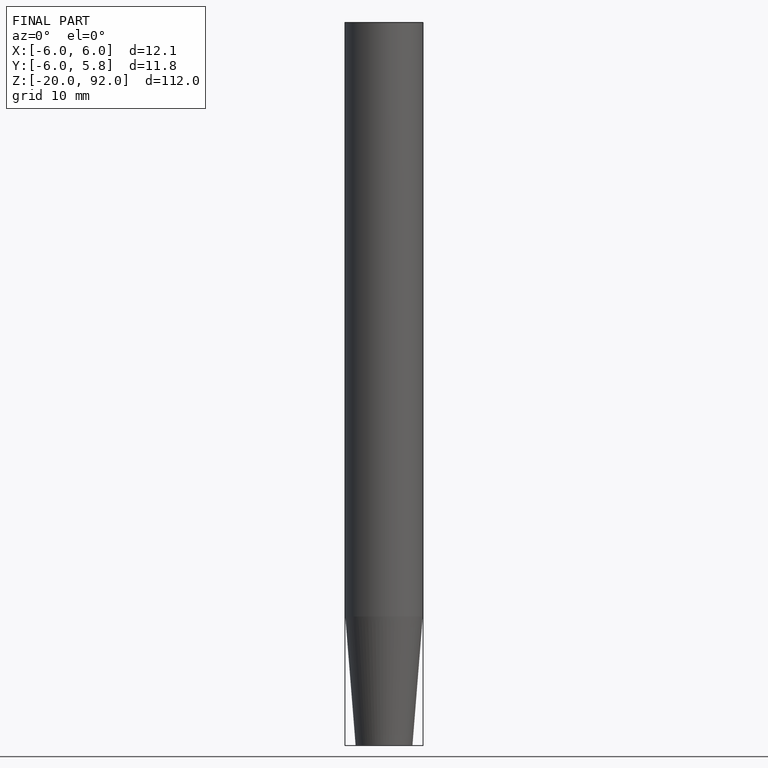
[diagram: finished part — front view with bounding-box wireframe]
